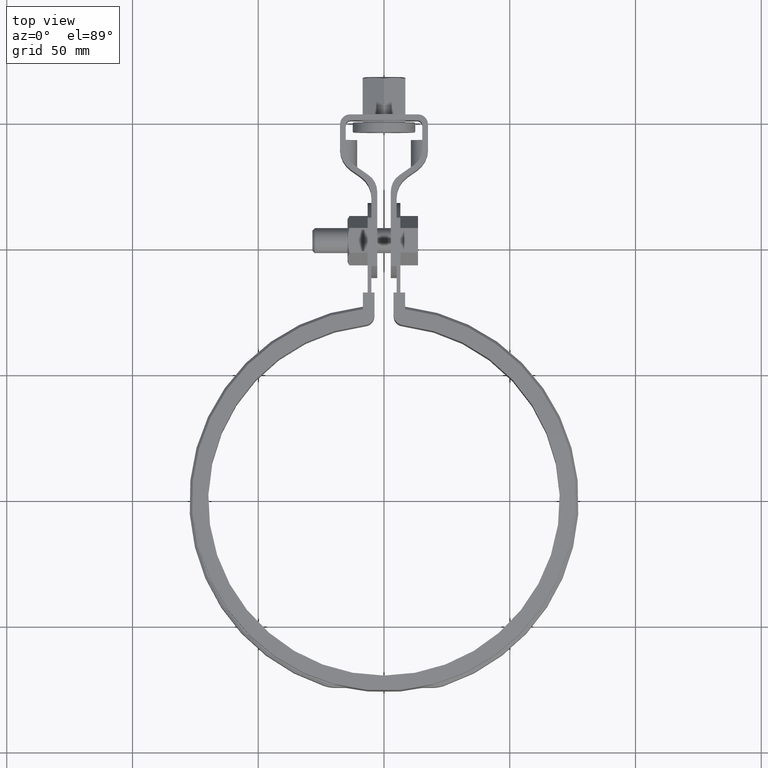
[diagram: clean part render]
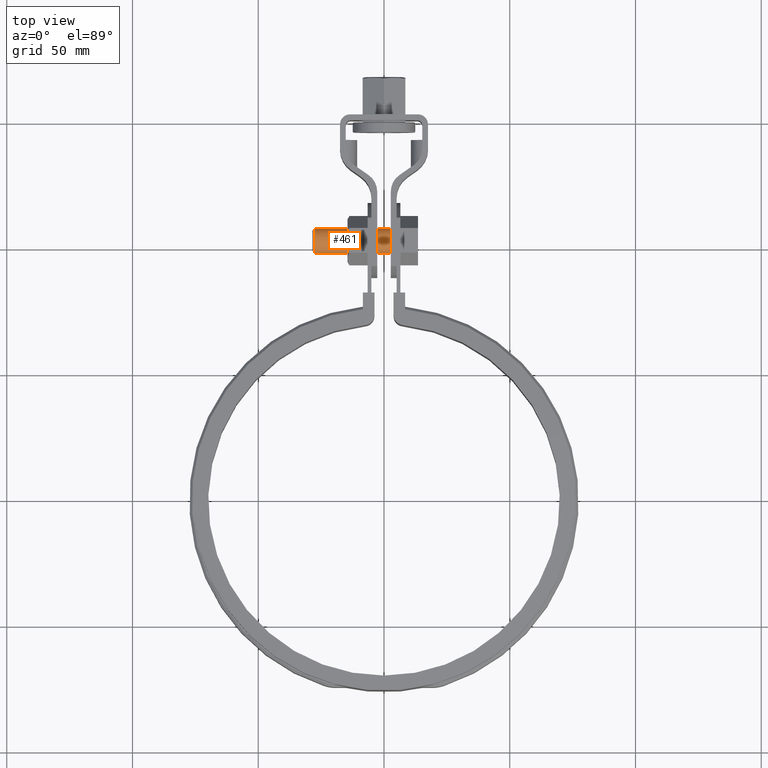
[diagram: same view with one face highlighted and labeled with its STEP entity id]
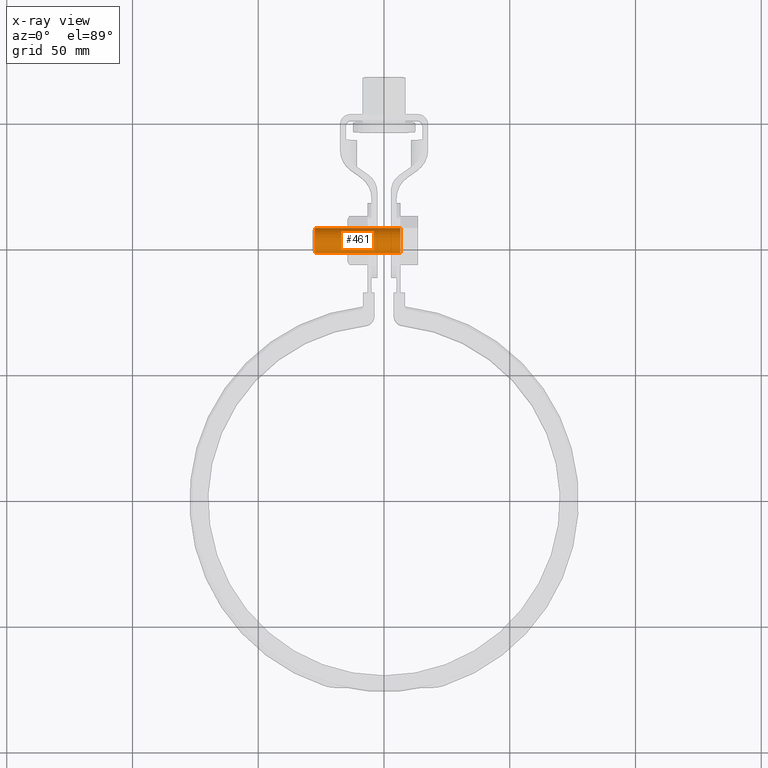
[diagram: x-ray of the same camera — body ghosted, the highlighted face saturated]
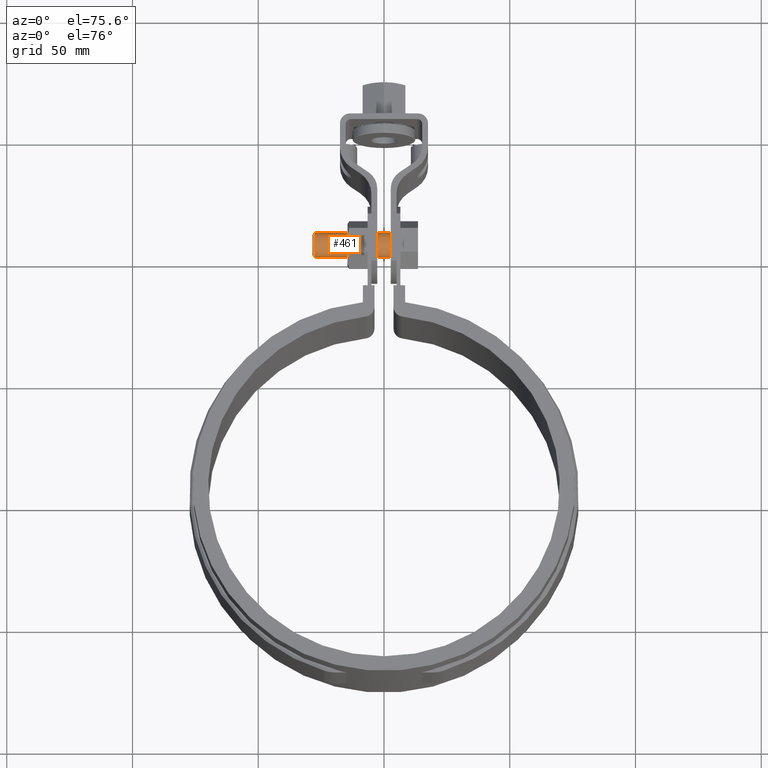
[diagram: same view with one face highlighted and labeled with its STEP entity id]
A machine part, top view. The second image highlights one B-rep face of the part: STEP entity #461.
The next image is the same camera in x-ray: the body ghosted, the highlighted face saturated — about 0% of this face is hidden behind the body in this view.
A second angle (auxiliary view) of the same face is appended — the face is thin or edge-on in the first view.
In plain terms, the highlighted cylindrical surface (bore or boss wall) has radius 5 mm, axis along (-1, -0, 0).
Its self-contained STEP definition (entity closure, byte-faithful):
#461 = ADVANCED_FACE( '', ( #813, #814 ), #815, .T. );
#813 = FACE_OUTER_BOUND( '', #1948, .T. );
#814 = FACE_OUTER_BOUND( '', #1949, .T. );
#815 = CYLINDRICAL_SURFACE( '', #1950, 4.99999999999939 );
#1948 = EDGE_LOOP( '', ( #4738 ) );
#1949 = EDGE_LOOP( '', ( #4739 ) );
#1950 = AXIS2_PLACEMENT_3D( '', #4740, #4741, #4742 );
#4738 = ORIENTED_EDGE( '', *, *, #5369, .T. );
#4739 = ORIENTED_EDGE( '', *, *, #5363, .F. );
#4740 = CARTESIAN_POINT( '', ( -28.4999999999914, 103.337141712794, -16.0000000000000 ) );
#4741 = DIRECTION( '', ( -1.00000000000000, -6.02334540269725E-017, 3.54376890737161E-093 ) );
#4742 = DIRECTION( '', ( 4.25795984000763E-109, -5.88338982815881E-077, -1.00000000000000 ) );
#5363 = EDGE_CURVE( '', #6102, #6102, #6103, .T. );
#5369 = EDGE_CURVE( '', #6112, #6112, #6113, .T. );
#6102 = VERTEX_POINT( '', #9058 );
#6103 = CIRCLE( '', #9059, 4.99999999999939 );
#6112 = VERTEX_POINT( '', #9073 );
#6113 = CIRCLE( '', #9074, 4.99999999999939 );
#9058 = CARTESIAN_POINT( '', ( 6.50000000000000, 103.337141712794, -20.9999999999994 ) );
#9059 = AXIS2_PLACEMENT_3D( '', #9839, #9840, #9841 );
#9073 = CARTESIAN_POINT( '', ( -27.4999999999917, 103.337141712794, -20.9999999999994 ) );
#9074 = AXIS2_PLACEMENT_3D( '', #9847, #9848, #9849 );
#9839 = CARTESIAN_POINT( '', ( 6.50000000000000, 103.337141712794, -16.0000000000000 ) );
#9840 = DIRECTION( '', ( 1.00000000000000, 6.02334540269725E-017, -3.54376890737161E-093 ) );
#9841 = DIRECTION( '', ( 4.25795984000763E-109, -5.88338982815881E-077, -1.00000000000000 ) );
#9847 = CARTESIAN_POINT( '', ( -27.4999999999917, 103.337141712794, -16.0000000000000 ) );
#9848 = DIRECTION( '', ( 1.00000000000000, 6.02334540269725E-017, -3.54376890737161E-093 ) );
#9849 = DIRECTION( '', ( 4.25795984000763E-109, -5.88338982815881E-077, -1.00000000000000 ) );